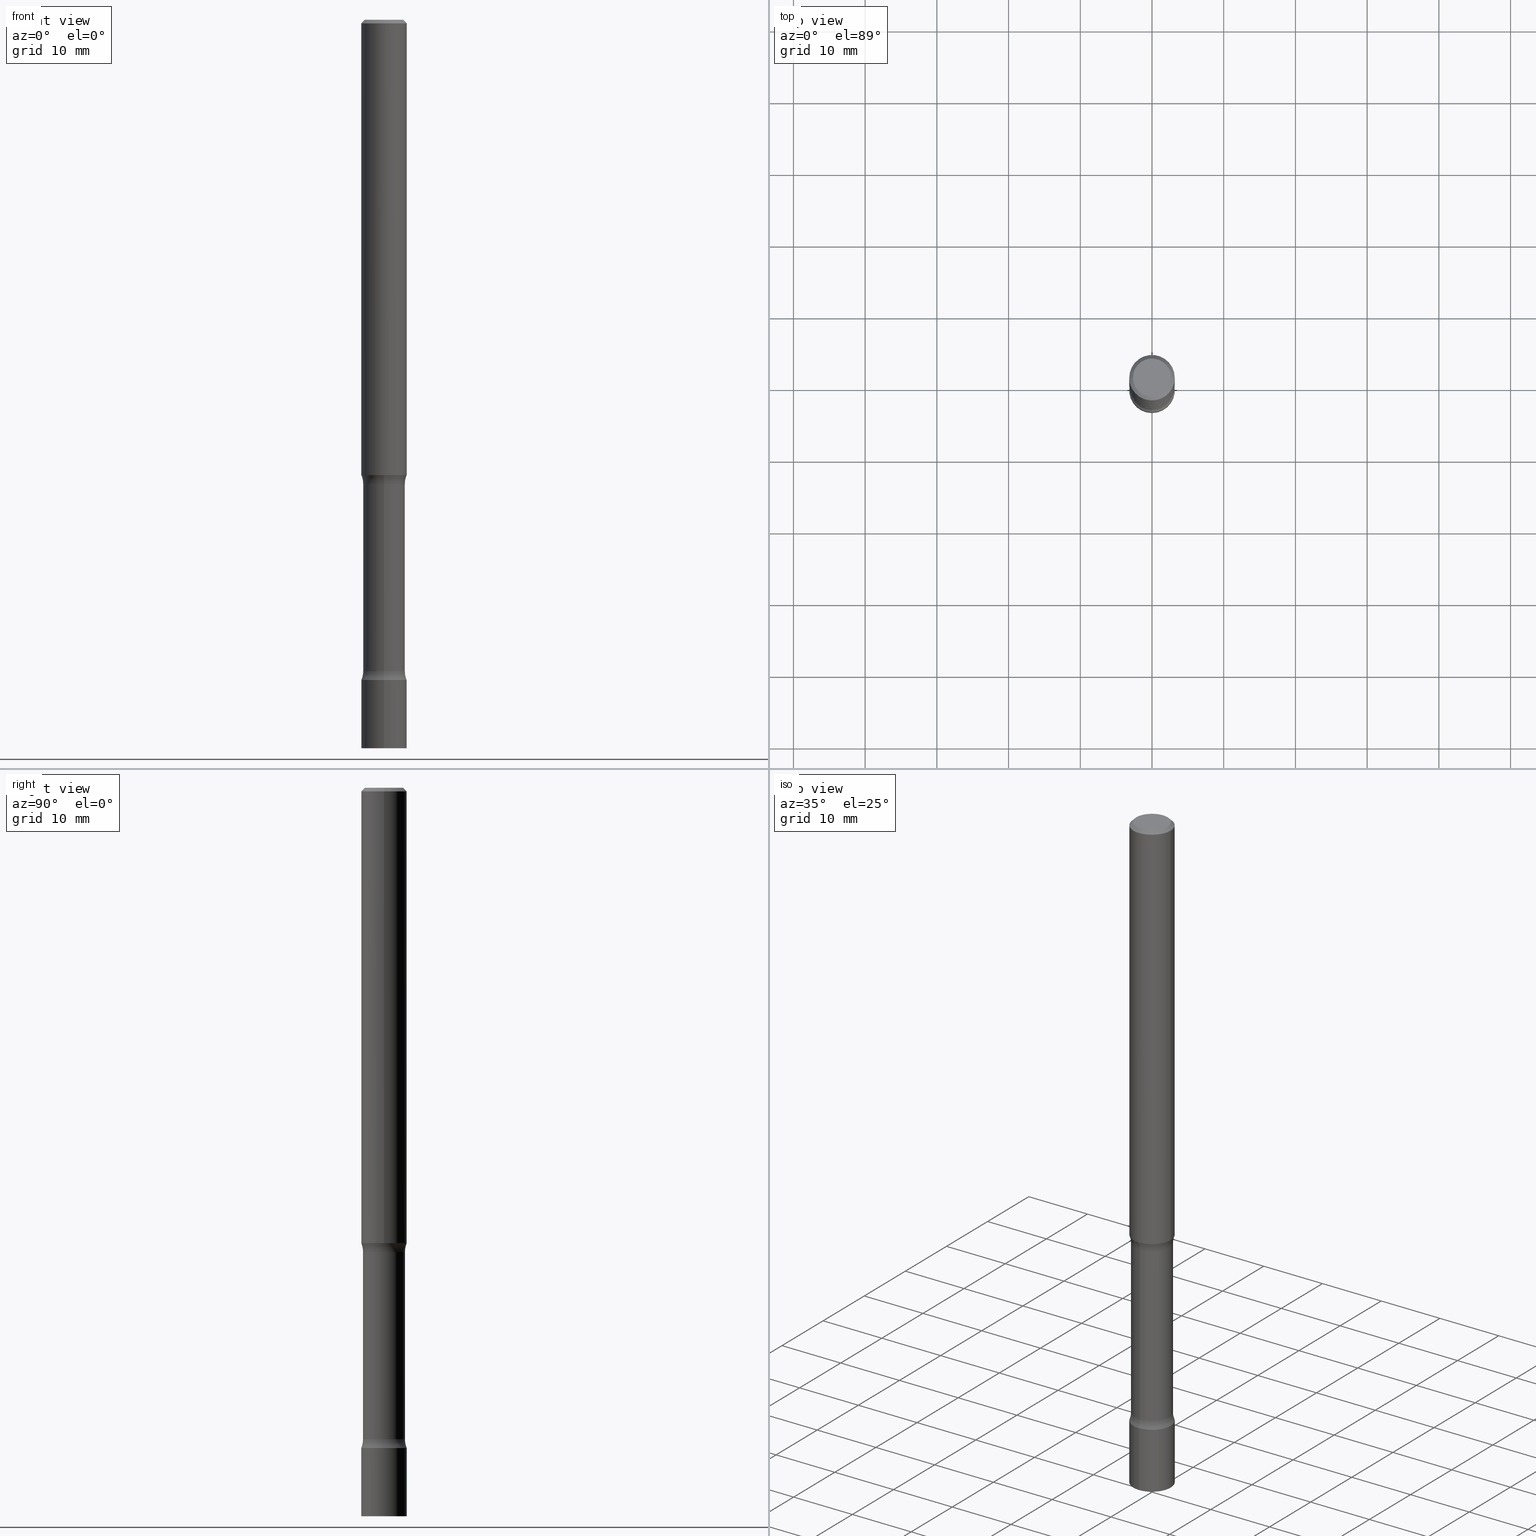
[diagram: canonical four-view strip — front | top / right | iso, engineering-drawing reading convention]
A machine part, canonical four-view strip (front | top / right | iso — engineering-drawing reading convention). The complete STEP part file that produces these views, byte-faithful:
ISO-10303-21;
HEADER;
FILE_DESCRIPTION (( 'STEP AP203' ),
    '1' );
FILE_NAME ('32728.STEP',
    '2024-03-11T13:17:38',
    ( '' ),
    ( '' ),
    'SwSTEP 2.0',
    'SolidWorks 2023',
    '' );
FILE_SCHEMA (( 'CONFIG_CONTROL_DESIGN' ));
ENDSEC;

DATA;
#1 = CIRCLE ( 'NONE', #482, 0.1250000000000000278 ) ;
#2 = CIRCLE ( 'NONE', #307, 0.1150000000000002548 ) ;
#3 = ORIENTED_EDGE ( 'NONE', *, *, #168, .F. ) ;
#4 = DIRECTION ( 'NONE',  ( 6.982962677686265922E-15, 1.000000000000000000, -4.751039988981320237E-15 ) ) ;
#5 = ORIENTED_EDGE ( 'NONE', *, *, #403, .T. ) ;
#6 = ADVANCED_FACE ( 'NONE', ( #472 ), #191, .F. ) ;
#7 = VERTEX_POINT ( 'NONE', #353 ) ;
#8 = DIRECTION ( 'NONE',  ( 2.666918422413057780E-29, -3.174352884275353825E-15, -1.000000000000000000 ) ) ;
#9 = CIRCLE ( 'NONE', #282, 0.1249999999999996947 ) ;
#10 = CIRCLE ( 'NONE', #194, 0.1249999999999999861 ) ;
#11 = ORIENTED_EDGE ( 'NONE', *, *, #17, .F. ) ;
#12 = EDGE_LOOP ( 'NONE', ( #80, #471, #486, #269 ) ) ;
#13 = DIRECTION ( 'NONE',  ( 6.982962677686265133E-15, 1.000000000000000000, -4.751039988981317081E-15 ) ) ;
#14 = FACE_OUTER_BOUND ( 'NONE', #12, .T. ) ;
#15 = LINE ( 'NONE', #367, #177 ) ;
#16 = CC_DESIGN_APPROVAL ( #237, ( #438 ) ) ;
#17 = EDGE_CURVE ( 'NONE', #7, #84, #345, .T. ) ;
#18 = LINE ( 'NONE', #362, #459 ) ;
#19 = AXIS2_PLACEMENT_3D ( 'NONE', #454, #64, #250 ) ;
#20 = CARTESIAN_POINT ( 'NONE',  ( -0.1049999999999997047, 7.681258945454870110E-16, -5.249639473182151863E-30 ) ) ;
#21 = CC_DESIGN_SECURITY_CLASSIFICATION ( #313, ( #293 ) ) ;
#22 = CARTESIAN_POINT ( 'NONE',  ( 0.000000000000000000, 0.000000000000000000, 0.000000000000000000 ) ) ;
#23 = CARTESIAN_POINT ( 'NONE',  ( 6.113672015462840371E-29, -8.728703347107863365E-15, -2.499999999999999556 ) ) ;
#24 = FACE_OUTER_BOUND ( 'NONE', #128, .T. ) ;
#25 = DIRECTION ( 'NONE',  ( 2.666918422413057780E-29, -3.174352884275353825E-15, -1.000000000000000000 ) ) ;
#26 = APPROVAL_STATUS ( 'not_yet_approved' ) ;
#27 = DIRECTION ( 'NONE',  ( 6.982962677686266711E-15, 1.000000000000000000, -3.174352884275354219E-15 ) ) ;
#28 = ORIENTED_EDGE ( 'NONE', *, *, #252, .T. ) ;
#29 = AXIS2_PLACEMENT_3D ( 'NONE', #140, #333, #133 ) ;
#30 = PERSON_AND_ORGANIZATION ( #286, #240 ) ;
#31 = DIRECTION ( 'NONE',  ( 6.982962677686265922E-15, 1.000000000000000000, -4.370956789862821938E-15 ) ) ;
#32 = DIRECTION ( 'NONE',  ( 2.666918422413057780E-29, -3.174352884275353825E-15, -1.000000000000000000 ) ) ;
#33 = COORDINATED_UNIVERSAL_TIME_OFFSET ( 5, 0, .BEHIND. ) ;
#34 = DIRECTION ( 'NONE',  ( 1.000000000000000000, -6.982962677686266711E-15, 0.000000000000000000 ) ) ;
#35 = ORIENTED_EDGE ( 'NONE', *, *, #377, .T. ) ;
#36 = CALENDAR_DATE ( 2024, 11, 3 ) ;
#37 = CARTESIAN_POINT ( 'NONE',  ( 4.890937612370273159E-31, -6.982962677686291609E-17, -0.02000000000000000042 ) ) ;
#38 = AXIS2_PLACEMENT_3D ( 'NONE', #379, #169, #290 ) ;
#39 = AXIS2_PLACEMENT_3D ( 'NONE', #220, #391, #446 ) ;
#40 = LOCAL_TIME ( 9, 17, 38.00000000000000000, #460 ) ;
#41 = VERTEX_POINT ( 'NONE', #371 ) ;
#42 = DIRECTION ( 'NONE',  ( -2.445794110482725293E-29, 3.491015484573827856E-15, 1.000000000000000000 ) ) ;
#43 = ORIENTED_EDGE ( 'NONE', *, *, #235, .F. ) ;
#44 = VERTEX_POINT ( 'NONE', #257 ) ;
#45 = AXIS2_PLACEMENT_3D ( 'NONE', #67, #296, #254 ) ;
#46 = CIRCLE ( 'NONE', #331, 0.1250000000000000000 ) ;
#47 = DIRECTION ( 'NONE',  ( -6.982962677686265922E-15, -1.000000000000000000, 4.370956789862821150E-15 ) ) ;
#48 = ORIENTED_EDGE ( 'NONE', *, *, #301, .T. ) ;
#49 = CARTESIAN_POINT ( 'NONE',  ( 8.735351864089074202E-29, -1.249942023497999275E-14, -3.576010205144336318 ) ) ;
#50 = DIRECTION ( 'NONE',  ( -6.982962677686265922E-15, -1.000000000000000000, 4.370956789862821938E-15 ) ) ;
#51 = MANIFOLD_SOLID_BREP ( 'Body-Move/Copy2[4]', #59 ) ;
#52 = DIRECTION ( 'NONE',  ( 1.000000000000000000, -6.982962677686265922E-15, 4.876176775795935793E-29 ) ) ;
#53 = CC_DESIGN_APPROVAL ( #163, ( #293 ) ) ;
#54 = PERSON_AND_ORGANIZATION_ROLE ( 'creator' ) ;
#55 = ADVANCED_FACE ( 'NONE', ( #382 ), #200, .F. ) ;
#56 = ADVANCED_FACE ( 'NONE', ( #455 ), #210, .T. ) ;
#57 = DIRECTION ( 'NONE',  ( 6.982962677686266711E-15, 1.000000000000000000, -3.174352884275353825E-15 ) ) ;
#58 = APPROVAL_DATE_TIME ( #417, #237 ) ;
#59 = CLOSED_SHELL ( 'NONE', ( #56, #238, #275, #55, #305, #318, #76, #425 ) ) ;
#60 = DIRECTION ( 'NONE',  ( -6.982962677686265922E-15, -1.000000000000000000, 0.000000000000000000 ) ) ;
#61 = DATE_AND_TIME ( #187, #91 ) ;
#62 = DIRECTION ( 'NONE',  ( -2.445794110482725293E-29, 3.491015484573827856E-15, 1.000000000000000000 ) ) ;
#63 = ADVANCED_FACE ( 'NONE', ( #24 ), #298, .T. ) ;
#64 = DIRECTION ( 'NONE',  ( -1.000000000000000000, 6.982962677686265922E-15, -4.883557194083112340E-29 ) ) ;
#65 = EDGE_CURVE ( 'NONE', #436, #186, #228, .T. ) ;
#66 = ORIENTED_EDGE ( 'NONE', *, *, #120, .T. ) ;
#67 = CARTESIAN_POINT ( 'NONE',  ( 6.113672015462840371E-29, -8.728703347107863365E-15, -2.499999999999999556 ) ) ;
#68 = AXIS2_PLACEMENT_3D ( 'NONE', #37, #263, #106 ) ;
#69 = COORDINATED_UNIVERSAL_TIME_OFFSET ( 5, 0, .BEHIND. ) ;
#70 = PLANE ( 'NONE',  #138 ) ;
#71 = ORIENTED_EDGE ( 'NONE', *, *, #255, .T. ) ;
#72 = FACE_OUTER_BOUND ( 'NONE', #221, .T. ) ;
#73 = DIRECTION ( 'NONE',  ( -2.445794110482725293E-29, 3.491015484573827856E-15, 1.000000000000000000 ) ) ;
#74 = AXIS2_PLACEMENT_3D ( 'NONE', #302, #356, #127 ) ;
#75 = CARTESIAN_POINT ( 'NONE',  ( 8.864824422421120163E-29, -1.265661985330640259E-14, -3.624999999999999556 ) ) ;
#76 = ADVANCED_FACE ( 'NONE', ( #181 ), #312, .F. ) ;
#77 = ORIENTED_EDGE ( 'NONE', *, *, #17, .T. ) ;
#78 = VERTEX_POINT ( 'NONE', #118 ) ;
#79 = CIRCLE ( 'NONE', #249, 0.1049999999999997047 ) ;
#80 = ORIENTED_EDGE ( 'NONE', *, *, #473, .F. ) ;
#81 = CARTESIAN_POINT ( 'NONE',  ( -8.728703347107832402E-16, -0.1250000000000000000, 4.363769355717284326E-16 ) ) ;
#82 = CC_DESIGN_PERSON_AND_ORGANIZATION_ASSIGNMENT ( #261, #175, ( #313 ) ) ;
#83 = ORIENTED_EDGE ( 'NONE', *, *, #374, .T. ) ;
#84 = VERTEX_POINT ( 'NONE', #152 ) ;
#85 = CARTESIAN_POINT ( 'NONE',  ( 0.1249999999999998473, -8.728703347107822541E-16, 6.095220969744912034E-30 ) ) ;
#86 = PERSON_AND_ORGANIZATION ( #286, #240 ) ;
#87 = EDGE_LOOP ( 'NONE', ( #230, #192, #271, #352 ) ) ;
#88 = EDGE_CURVE ( 'NONE', #44, #467, #475, .T. ) ;
#89 = LENGTH_MEASURE_WITH_UNIT ( LENGTH_MEASURE( 0.02539999999999999897 ), #241 );
#90 = AXIS2_PLACEMENT_3D ( 'NONE', #114, #415, #164 ) ;
#91 = LOCAL_TIME ( 9, 17, 38.00000000000000000, #69 ) ;
#92 = CARTESIAN_POINT ( 'NONE',  ( 8.030407079339822620E-16, 0.1149999999999910261, -2.548989794855663682 ) ) ;
#93 = PLANE ( 'NONE',  #435 ) ;
#94 = CARTESIAN_POINT ( 'NONE',  ( 1.675911042644791535E-15, 0.2399999999999875289, -3.576010205144337206 ) ) ;
#95 = APPROVAL_ROLE ( '' ) ;
#96 = DESIGN_CONTEXT ( 'detailed design', #123, 'design' ) ;
#97 = AXIS2_PLACEMENT_3D ( 'NONE', #102, #32, #57 ) ;
#98 = APPROVAL_PERSON_ORGANIZATION ( #487, #237, #95 ) ;
#99 = DIRECTION ( 'NONE',  ( 2.666918422413057780E-29, -3.174352884275353825E-15, -1.000000000000000000 ) ) ;
#100 = DIRECTION ( 'NONE',  ( 6.860497997771531562E-15, 1.000000000000000000, 0.000000000000000000 ) ) ;
#101 = EDGE_LOOP ( 'NONE', ( #281, #266, #11, #361 ) ) ;
#102 = CARTESIAN_POINT ( 'NONE',  ( 6.018865614068992271E-29, -9.207083200927395066E-15, -2.548989794855663238 ) ) ;
#103 = DIRECTION ( 'NONE',  ( -6.982962677686265922E-15, -1.000000000000000000, 4.370956789862821938E-15 ) ) ;
#104 = APPROVAL_DATE_TIME ( #507, #163 ) ;
#105 = AXIS2_PLACEMENT_3D ( 'NONE', #335, #25, #209 ) ;
#106 = DIRECTION ( 'NONE',  ( -1.000000000000000000, 6.982962677686266711E-15, 0.000000000000000000 ) ) ;
#107 = AXIS2_PLACEMENT_3D ( 'NONE', #470, #111, #4 ) ;
#108 = CONICAL_SURFACE ( 'NONE', #402, 0.1249999999999996947, 0.7853981633974480570 ) ;
#109 = APPROVAL_PERSON_ORGANIZATION ( #30, #148, #502 ) ;
#110 = APPROVAL_DATE_TIME ( #495, #148 ) ;
#111 = DIRECTION ( 'NONE',  ( 2.666918422413057780E-29, -3.174352884275353825E-15, -1.000000000000000000 ) ) ;
#112 = ORIENTED_EDGE ( 'NONE', *, *, #357, .F. ) ;
#113 = PLANE ( 'NONE',  #151 ) ;
#114 = CARTESIAN_POINT ( 'NONE',  ( 0.000000000000000000, 0.000000000000000000, 0.000000000000000000 ) ) ;
#115 = EDGE_LOOP ( 'NONE', ( #358, #83, #35, #504 ) ) ;
#116 = ADVANCED_FACE ( 'NONE', ( #304 ), #146, .T. ) ;
#117 = CIRCLE ( 'NONE', #338, 0.1249999999999999306 ) ;
#118 = CARTESIAN_POINT ( 'NONE',  ( -0.1250000000000000278, -3.511088067242232183E-15, -2.499999999999999556 ) ) ;
#119 = ORIENTED_EDGE ( 'NONE', *, *, #433, .F. ) ;
#120 = EDGE_CURVE ( 'NONE', #78, #484, #211, .T. ) ;
#121 = ORIENTED_EDGE ( 'NONE', *, *, #326, .F. ) ;
#122 = ORIENTED_EDGE ( 'NONE', *, *, #348, .T. ) ;
#123 = APPLICATION_CONTEXT ( 'configuration controlled 3d designs of mechanical parts and assemblies' ) ;
#124 = CARTESIAN_POINT ( 'NONE',  ( 8.728703347108439825E-16, 0.1249999999999912015, -2.500000000000000000 ) ) ;
#125 = ORIENTED_EDGE ( 'NONE', *, *, #154, .F. ) ;
#126 = CIRCLE ( 'NONE', #414, 0.1249999999999996947 ) ;
#127 = DIRECTION ( 'NONE',  ( 6.982962677686265922E-15, 1.000000000000000000, -4.370956789862810105E-15 ) ) ;
#128 = EDGE_LOOP ( 'NONE', ( #71, #66, #233, #121 ) ) ;
#129 = ORIENTED_EDGE ( 'NONE', *, *, #329, .T. ) ;
#130 = PRODUCT_RELATED_PRODUCT_CATEGORY ( 'detail', '', ( #134 ) ) ;
#131 = APPLICATION_PROTOCOL_DEFINITION ( 'international standard', 'config_control_design', 1994, #284 ) ;
#132 = VECTOR ( 'NONE', #142, 39.37007874015748143 ) ;
#133 = DIRECTION ( 'NONE',  ( 1.000000000000000000, -6.982962677686265922E-15, 4.876176775795935793E-29 ) ) ;
#134 = PRODUCT ( '32728', '32728', '', ( #453 ) ) ;
#135 = EDGE_CURVE ( 'NONE', #273, #389, #214, .T. ) ;
#136 = CARTESIAN_POINT ( 'NONE',  ( 8.881784197001251337E-16, 0.1250000000000000000, -4.363769355717284326E-16 ) ) ;
#137 = CLOSED_SHELL ( 'NONE', ( #283, #295, #6, #395 ) ) ;
#138 = AXIS2_PLACEMENT_3D ( 'NONE', #217, #219, #319 ) ;
#139 = CARTESIAN_POINT ( 'NONE',  ( 0.000000000000000000, 0.000000000000000000, 0.000000000000000000 ) ) ;
#140 = CARTESIAN_POINT ( 'NONE',  ( 6.113672015462840371E-29, -8.728703347107863365E-15, -2.499999999999999556 ) ) ;
#141 = APPROVAL_ROLE ( '' ) ;
#142 = DIRECTION ( 'NONE',  ( -2.445794110482725293E-29, 3.491015484573827856E-15, 1.000000000000000000 ) ) ;
#143 = AXIS2_PLACEMENT_3D ( 'NONE', #174, #243, #494 ) ;
#144 = FACE_OUTER_BOUND ( 'NONE', #303, .T. ) ;
#145 = AXIS2_PLACEMENT_3D ( 'NONE', #332, #327, #365 ) ;
#146 = CYLINDRICAL_SURFACE ( 'NONE', #90, 0.1249999999999998473 ) ;
#147 = DIRECTION ( 'NONE',  ( 6.982962677686265922E-15, 1.000000000000000000, -4.751039988981323392E-15 ) ) ;
#148 = APPROVAL ( #336, 'UNSPECIFIED' ) ;
#149 = EDGE_LOOP ( 'NONE', ( #77, #267 ) ) ;
#150 = AXIS2_PLACEMENT_3D ( 'NONE', #178, #456, #31 ) ;
#151 = AXIS2_PLACEMENT_3D ( 'NONE', #478, #341, #157 ) ;
#152 = CARTESIAN_POINT ( 'NONE',  ( 8.881784197002228539E-16, 0.1249999999999873157, -3.625000000000000444 ) ) ;
#153 = ORIENTED_EDGE ( 'NONE', *, *, #473, .T. ) ;
#154 = EDGE_CURVE ( 'NONE', #78, #359, #176, .T. ) ;
#155 = CARTESIAN_POINT ( 'NONE',  ( 8.866003650499878838E-29, -1.265493113158012519E-14, -3.624999999999999556 ) ) ;
#156 = ORIENTED_EDGE ( 'NONE', *, *, #88, .F. ) ;
#157 = DIRECTION ( 'NONE',  ( -6.982962677686265922E-15, -1.000000000000000000, 3.174352884275353825E-15 ) ) ;
#158 = ORIENTED_EDGE ( 'NONE', *, *, #314, .F. ) ;
#159 = CLOSED_SHELL ( 'NONE', ( #63, #394, #447, #429, #297, #116 ) ) ;
#160 = LOCAL_TIME ( 9, 17, 38.00000000000000000, #206 ) ;
#161 = CARTESIAN_POINT ( 'NONE',  ( 8.728703347108716912E-16, 0.1249999999999873157, -3.624999999999999556 ) ) ;
#162 =( NAMED_UNIT ( * ) SI_UNIT ( $, .STERADIAN. ) SOLID_ANGLE_UNIT ( ) );
#163 = APPROVAL ( #26, 'UNSPECIFIED' ) ;
#164 = DIRECTION ( 'NONE',  ( 1.000000000000000000, -6.982962677686266711E-15, 4.876176775795935793E-29 ) ) ;
#165 = DATE_AND_TIME ( #197, #160 ) ;
#166 = CALENDAR_DATE ( 2024, 11, 3 ) ;
#167 = AXIS2_PLACEMENT_3D ( 'NONE', #49, #196, #147 ) ;
#168 = EDGE_CURVE ( 'NONE', #467, #84, #287, .T. ) ;
#169 = DIRECTION ( 'NONE',  ( 2.666918422413057780E-29, -3.174352884275353825E-15, -1.000000000000000000 ) ) ;
#170 = CC_DESIGN_PERSON_AND_ORGANIZATION_ASSIGNMENT ( #204, #54, ( #438 ) ) ;
#171 = DIRECTION ( 'NONE',  ( 2.666918422413057780E-29, -3.174352884275353825E-15, -1.000000000000000000 ) ) ;
#172 = DIRECTION ( 'NONE',  ( -2.445468806185136597E-29, 3.491481338843145583E-15, 1.000000000000000000 ) ) ;
#173 = PERSON_AND_ORGANIZATION ( #286, #240 ) ;
#174 = CARTESIAN_POINT ( 'NONE',  ( 6.113672015462840371E-29, -8.728703347107863365E-15, -2.499999999999999556 ) ) ;
#175 = PERSON_AND_ORGANIZATION_ROLE ( 'classification_officer' ) ;
#176 = CIRCLE ( 'NONE', #45, 0.1250000000000000000 ) ;
#177 = VECTOR ( 'NONE', #288, 39.37007874015748143 ) ;
#178 = CARTESIAN_POINT ( 'NONE',  ( 8.866003650499878838E-29, -1.265493113158012519E-14, -3.624999999999999556 ) ) ;
#179 = DIRECTION ( 'NONE',  ( -2.445794110482725293E-29, 3.491015484573827856E-15, 1.000000000000000000 ) ) ;
#180 = ORIENTED_EDGE ( 'NONE', *, *, #366, .T. ) ;
#181 = FACE_OUTER_BOUND ( 'NONE', #315, .T. ) ;
#182 = CARTESIAN_POINT ( 'NONE',  ( -8.232597597324957230E-16, -0.1150000000000126060, -3.576010205144335874 ) ) ;
#183 = EDGE_LOOP ( 'NONE', ( #428, #153 ) ) ;
#184 = DATE_TIME_ROLE ( 'classification_date' ) ;
#185 = CARTESIAN_POINT ( 'NONE',  ( 9.783176441930901173E-29, -1.396406193829530984E-14, -4.000000000000000000 ) ) ;
#186 = VERTEX_POINT ( 'NONE', #422 ) ;
#187 = CALENDAR_DATE ( 2024, 11, 3 ) ;
#188 = AXIS2_PLACEMENT_3D ( 'NONE', #75, #350, #268 ) ;
#189 = DIRECTION ( 'NONE',  ( 6.982962677686265922E-15, 1.000000000000000000, -3.174352884275353825E-15 ) ) ;
#190 = AXIS2_PLACEMENT_3D ( 'NONE', #474, #320, #481 ) ;
#191 = PLANE ( 'NONE',  #188 ) ;
#192 = ORIENTED_EDGE ( 'NONE', *, *, #433, .T. ) ;
#193 = VECTOR ( 'NONE', #461, 39.37007874015748143 ) ;
#194 = AXIS2_PLACEMENT_3D ( 'NONE', #155, #73, #50 ) ;
#195 = DIRECTION ( 'NONE',  ( 2.666918422413057780E-29, -3.174352884275353825E-15, -1.000000000000000000 ) ) ;
#196 = DIRECTION ( 'NONE',  ( 2.666918422413057780E-29, -3.174352884275353825E-15, -1.000000000000000000 ) ) ;
#197 = CALENDAR_DATE ( 2024, 11, 3 ) ;
#198 = VERTEX_POINT ( 'NONE', #182 ) ;
#199 = EDGE_CURVE ( 'NONE', #484, #41, #9, .T. ) ;
#200 = TOROIDAL_SURFACE ( 'NONE', #38, 0.2400000000000002409, 0.1250000000000000278 ) ;
#201 = APPROVAL_PERSON_ORGANIZATION ( #380, #163, #141 ) ;
#202 = CC_DESIGN_PERSON_AND_ORGANIZATION_ASSIGNMENT ( #387, #340, ( #293 ) ) ;
#203 = CC_DESIGN_APPROVAL ( #148, ( #313 ) ) ;
#204 = PERSON_AND_ORGANIZATION ( #286, #240 ) ;
#205 = PLANE ( 'NONE',  #29 ) ;
#206 = COORDINATED_UNIVERSAL_TIME_OFFSET ( 5, 0, .BEHIND. ) ;
#207 = DIRECTION ( 'NONE',  ( -2.445794110482725293E-29, 3.491015484573827856E-15, 1.000000000000000000 ) ) ;
#208 = DIRECTION ( 'NONE',  ( 2.666918422413057780E-29, -3.174352884275353825E-15, -1.000000000000000000 ) ) ;
#209 = DIRECTION ( 'NONE',  ( 6.982962677686265922E-15, 1.000000000000000000, -4.370956789862810105E-15 ) ) ;
#210 = CYLINDRICAL_SURFACE ( 'NONE', #413, 0.1150000000000001715 ) ;
#211 = LINE ( 'NONE', #328, #442 ) ;
#212 = CARTESIAN_POINT ( 'NONE',  ( 4.890937612370273159E-31, -6.982962677686291609E-17, -0.02000000000000000042 ) ) ;
#213 = EDGE_CURVE ( 'NONE', #389, #41, #385, .T. ) ;
#214 = CIRCLE ( 'NONE', #258, 0.1049999999999997047 ) ;
#215 = AXIS2_PLACEMENT_3D ( 'NONE', #23, #171, #189 ) ;
#216 = DIRECTION ( 'NONE',  ( -2.445468806185136597E-29, 3.491481338843145583E-15, 1.000000000000000000 ) ) ;
#217 = CARTESIAN_POINT ( 'NONE',  ( 9.781875224740546387E-29, -1.396592535537258233E-14, -4.000000000000000000 ) ) ;
#218 = ORIENTED_EDGE ( 'NONE', *, *, #377, .F. ) ;
#219 = DIRECTION ( 'NONE',  ( 2.445794110482725013E-29, -3.491015484573827856E-15, -1.000000000000000000 ) ) ;
#220 = CARTESIAN_POINT ( 'NONE',  ( 8.735351864089074202E-29, -1.249942023497999275E-14, -3.576010205144336318 ) ) ;
#221 = EDGE_LOOP ( 'NONE', ( #156, #444 ) ) ;
#222 = DIRECTION ( 'NONE',  ( 6.982962677686266711E-15, 1.000000000000000000, -3.174352884275354219E-15 ) ) ;
#223 = ORIENTED_EDGE ( 'NONE', *, *, #351, .T. ) ;
#224 = EDGE_CURVE ( 'NONE', #317, #349, #330, .T. ) ;
#225 = CARTESIAN_POINT ( 'NONE',  ( 8.745021407280186183E-29, -1.248557289877410003E-14, -3.576010205144336318 ) ) ;
#226 = VERTEX_POINT ( 'NONE', #92 ) ;
#227 = ORIENTED_EDGE ( 'NONE', *, *, #135, .F. ) ;
#228 = CIRCLE ( 'NONE', #150, 0.1249999999999999861 ) ;
#229 = VECTOR ( 'NONE', #262, 39.37007874015748143 ) ;
#230 = ORIENTED_EDGE ( 'NONE', *, *, #314, .T. ) ;
#231 = CARTESIAN_POINT ( 'NONE',  ( 5.996372211695994382E-29, -9.239295033370484915E-15, -2.548989794855663238 ) ) ;
#232 = ORIENTED_EDGE ( 'NONE', *, *, #199, .F. ) ;
#233 = ORIENTED_EDGE ( 'NONE', *, *, #407, .F. ) ;
#235 = EDGE_CURVE ( 'NONE', #260, #317, #1, .T. ) ;
#234 = CARTESIAN_POINT ( 'NONE',  ( 5.996372211695994382E-29, -9.239295033370484915E-15, -2.548989794855663238 ) ) ;
#236 = EDGE_LOOP ( 'NONE', ( #3, #323, #122, #112 ) ) ;
#237 = APPROVAL ( #280, 'UNSPECIFIED' ) ;
#238 = ADVANCED_FACE ( 'NONE', ( #496 ), #247, .F. ) ;
#239 = DIRECTION ( 'NONE',  ( 2.438088387897960049E-29, -3.491481338843145188E-15, -1.000000000000000000 ) ) ;
#240 = ORGANIZATION ( 'UNSPECIFIED', 'UNSPECIFIED', '' ) ;
#241 =( LENGTH_UNIT ( ) NAMED_UNIT ( * ) SI_UNIT ( $, .METRE. ) );
#242 = CC_DESIGN_DATE_AND_TIME_ASSIGNMENT ( #61, #184, ( #313 ) ) ;
#243 = DIRECTION ( 'NONE',  ( -2.445468806185136597E-29, 3.491481338843145583E-15, 1.000000000000000000 ) ) ;
#244 = CARTESIAN_POINT ( 'NONE',  ( -0.1249999999999996947, 8.030407079339181671E-16, -0.02000000000000000042 ) ) ;
#245 = UNCERTAINTY_MEASURE_WITH_UNIT (LENGTH_MEASURE( 1.000000000000000082E-05 ), #485, 'distance_accuracy_value', 'NONE');
#246 = DIRECTION ( 'NONE',  ( -1.000000000000000000, 6.982962677686265922E-15, -4.883557194083112340E-29 ) ) ;
#247 = TOROIDAL_SURFACE ( 'NONE', #401, 0.2400000000000000466, 0.1249999999999999306 ) ;
#248 = COORDINATED_UNIVERSAL_TIME_OFFSET ( 5, 0, .BEHIND. ) ;
#249 = AXIS2_PLACEMENT_3D ( 'NONE', #22, #334, #52 ) ;
#250 = DIRECTION ( 'NONE',  ( -6.982962677686265922E-15, -1.000000000000000000, 0.000000000000000000 ) ) ;
#251 = CARTESIAN_POINT ( 'NONE',  ( 9.866098058904775575E-29, -1.384531346318338381E-14, -4.000000000000000000 ) ) ;
#252 = EDGE_CURVE ( 'NONE', #226, #349, #468, .T. ) ;
#253 = SHAPE_DEFINITION_REPRESENTATION ( #458, #278 ) ;
#254 = DIRECTION ( 'NONE',  ( 1.000000000000000000, -6.982962677686270655E-15, 0.000000000000000000 ) ) ;
#255 = EDGE_CURVE ( 'NONE', #359, #78, #306, .T. ) ;
#256 = FACE_OUTER_BOUND ( 'NONE', #445, .T. ) ;
#257 = CARTESIAN_POINT ( 'NONE',  ( -8.728703347106854215E-16, -0.1250000000000139611, -3.999999999999999556 ) ) ;
#258 = AXIS2_PLACEMENT_3D ( 'NONE', #464, #216, #457 ) ;
#259 = FACE_OUTER_BOUND ( 'NONE', #311, .T. ) ;
#260 = VERTEX_POINT ( 'NONE', #291 ) ;
#261 = PERSON_AND_ORGANIZATION ( #286, #240 ) ;
#262 = DIRECTION ( 'NONE',  ( -2.445468806185136877E-29, 3.491481338843145188E-15, 1.000000000000000000 ) ) ;
#263 = DIRECTION ( 'NONE',  ( 2.445468806185136597E-29, -3.491481338843145583E-15, -1.000000000000000000 ) ) ;
#264 = CARTESIAN_POINT ( 'NONE',  ( 9.783176441930901173E-29, -1.396406193829530984E-14, -4.000000000000000000 ) ) ;
#265 = LOCAL_TIME ( 9, 17, 38.00000000000000000, #33 ) ;
#266 = ORIENTED_EDGE ( 'NONE', *, *, #168, .T. ) ;
#267 = ORIENTED_EDGE ( 'NONE', *, *, #357, .T. ) ;
#268 = DIRECTION ( 'NONE',  ( 6.982962677686265922E-15, 1.000000000000000000, -3.491015484573827856E-15 ) ) ;
#269 = ORIENTED_EDGE ( 'NONE', *, *, #431, .F. ) ;
#270 = ORIENTED_EDGE ( 'NONE', *, *, #213, .F. ) ;
#271 = ORIENTED_EDGE ( 'NONE', *, *, #366, .F. ) ;
#272 = LINE ( 'NONE', #85, #229 ) ;
#273 = VERTEX_POINT ( 'NONE', #20 ) ;
#274 = DIRECTION ( 'NONE',  ( 1.000000000000000000, -6.860497997771530774E-15, 4.844682583092192564E-29 ) ) ;
#275 = ADVANCED_FACE ( 'NONE', ( #256 ), #321, .F. ) ;
#276 = EDGE_LOOP ( 'NONE', ( #399, #396, #411, #232 ) ) ;
#277 = ORIENTED_EDGE ( 'NONE', *, *, #364, .F. ) ;
#278 = ADVANCED_BREP_SHAPE_REPRESENTATION ( '32728', ( #390, #392, #51, #145 ), #372 ) ;
#279 = DIRECTION ( 'NONE',  ( -2.445468806185136877E-29, 3.491481338843145188E-15, 1.000000000000000000 ) ) ;
#280 = APPROVAL_STATUS ( 'not_yet_approved' ) ;
#281 = ORIENTED_EDGE ( 'NONE', *, *, #88, .T. ) ;
#282 = AXIS2_PLACEMENT_3D ( 'NONE', #212, #426, #420 ) ;
#283 = ADVANCED_FACE ( 'NONE', ( #418 ), #337, .T. ) ;
#284 = APPLICATION_CONTEXT ( 'configuration controlled 3d designs of mechanical parts and assemblies' ) ;
#285 =( NAMED_UNIT ( * ) PLANE_ANGLE_UNIT ( ) SI_UNIT ( $, .RADIAN. ) );
#286 = PERSON ( 'UNSPECIFIED', 'UNSPECIFIED', 'UNSPECIFIED', ('UNSPECIFIED'), ('UNSPECIFIED'), ('UNSPECIFIED') ) ;
#287 = LINE ( 'NONE', #136, #449 ) ;
#288 = DIRECTION ( 'NONE',  ( 2.666918422413057780E-29, -3.174352884275353825E-15, -1.000000000000000000 ) ) ;
#289 = CARTESIAN_POINT ( 'NONE',  ( -1.646519519465108789E-15, -0.2400000000000094558, -2.548989794855662794 ) ) ;
#290 = DIRECTION ( 'NONE',  ( 6.982962677686266711E-15, 1.000000000000000000, -3.174352884275353825E-15 ) ) ;
#291 = CARTESIAN_POINT ( 'NONE',  ( -8.232597597325262914E-16, -0.1150000000000094835, -2.548989794855662794 ) ) ;
#292 = AXIS2_PLACEMENT_3D ( 'NONE', #462, #172, #294 ) ;
#293 = PRODUCT_DEFINITION_FORMATION_WITH_SPECIFIED_SOURCE ( 'ANY', '', #134, .NOT_KNOWN. ) ;
#294 = DIRECTION ( 'NONE',  ( 1.000000000000000000, -6.982962677686266711E-15, 4.876176775795935793E-29 ) ) ;
#295 = ADVANCED_FACE ( 'NONE', ( #492 ), #452, .T. ) ;
#296 = DIRECTION ( 'NONE',  ( -2.445468806185136597E-29, 3.491481338843145583E-15, 1.000000000000000000 ) ) ;
#297 = ADVANCED_FACE ( 'NONE', ( #369 ), #205, .F. ) ;
#298 = CYLINDRICAL_SURFACE ( 'NONE', #292, 0.1249999999999998473 ) ;
#299 = ORIENTED_EDGE ( 'NONE', *, *, #224, .T. ) ;
#300 = FACE_OUTER_BOUND ( 'NONE', #397, .T. ) ;
#301 = EDGE_CURVE ( 'NONE', #436, #309, #483, .T. ) ;
#302 = CARTESIAN_POINT ( 'NONE',  ( 5.865720425285187504E-29, -9.083784136770352480E-15, -2.499999999999999556 ) ) ;
#303 = EDGE_LOOP ( 'NONE', ( #119, #223, #129, #218 ) ) ;
#304 = FACE_OUTER_BOUND ( 'NONE', #276, .T. ) ;
#305 = ADVANCED_FACE ( 'NONE', ( #300 ), #375, .F. ) ;
#306 = CIRCLE ( 'NONE', #143, 0.1250000000000000000 ) ;
#307 = AXIS2_PLACEMENT_3D ( 'NONE', #231, #310, #406 ) ;
#308 = CYLINDRICAL_SURFACE ( 'NONE', #107, 0.1150000000000001715 ) ;
#309 = VERTEX_POINT ( 'NONE', #410 ) ;
#310 = DIRECTION ( 'NONE',  ( 2.666918422413057780E-29, -3.174352884275353825E-15, -1.000000000000000000 ) ) ;
#311 = EDGE_LOOP ( 'NONE', ( #437, #5 ) ) ;
#312 = TOROIDAL_SURFACE ( 'NONE', #434, 0.2400000000000000466, 0.1249999999999999306 ) ;
#313 = SECURITY_CLASSIFICATION ( '', '', #343 ) ;
#314 = EDGE_CURVE ( 'NONE', #226, #260, #322, .T. ) ;
#315 = EDGE_LOOP ( 'NONE', ( #342, #480, #48, #180 ) ) ;
#316 = DIRECTION ( 'NONE',  ( -2.445794110482725293E-29, 3.491015484573827856E-15, 1.000000000000000000 ) ) ;
#317 = VERTEX_POINT ( 'NONE', #344 ) ;
#318 = ADVANCED_FACE ( 'NONE', ( #259 ), #113, .F. ) ;
#319 = DIRECTION ( 'NONE',  ( 6.982962677686265922E-15, 1.000000000000000000, -3.491015484573827856E-15 ) ) ;
#320 = DIRECTION ( 'NONE',  ( 2.666918422413057780E-29, -3.174352884275353825E-15, -1.000000000000000000 ) ) ;
#321 = TOROIDAL_SURFACE ( 'NONE', #97, 0.2400000000000002409, 0.1250000000000000278 ) ;
#322 = CIRCLE ( 'NONE', #384, 0.1150000000000002548 ) ;
#323 = ORIENTED_EDGE ( 'NONE', *, *, #416, .T. ) ;
#324 = CARTESIAN_POINT ( 'NONE',  ( 4.890937612370273159E-31, -6.982962677686291609E-17, -0.02000000000000000042 ) ) ;
#325 = FACE_OUTER_BOUND ( 'NONE', #477, .T. ) ;
#326 = EDGE_CURVE ( 'NONE', #359, #41, #272, .T. ) ;
#327 = DIRECTION ( 'NONE',  ( 0.000000000000000000, 0.000000000000000000, 1.000000000000000000 ) ) ;
#328 = CARTESIAN_POINT ( 'NONE',  ( -0.1249999999999998473, 8.881784197001241477E-16, -6.148668862818624520E-30 ) ) ;
#329 = EDGE_CURVE ( 'NONE', #226, #309, #432, .T. ) ;
#330 = CIRCLE ( 'NONE', #105, 0.1250000000000003053 ) ;
#331 = AXIS2_PLACEMENT_3D ( 'NONE', #185, #508, #47 ) ;
#332 = CARTESIAN_POINT ( 'NONE',  ( 0.000000000000000000, 0.000000000000000000, 0.000000000000000000 ) ) ;
#333 = DIRECTION ( 'NONE',  ( -2.438088387897960049E-29, 3.491481338843145188E-15, 1.000000000000000000 ) ) ;
#334 = DIRECTION ( 'NONE',  ( -2.445468806185136597E-29, 3.491481338843145583E-15, 1.000000000000000000 ) ) ;
#335 = CARTESIAN_POINT ( 'NONE',  ( 5.865720425285187504E-29, -9.083784136770352480E-15, -2.499999999999999556 ) ) ;
#336 = APPROVAL_STATUS ( 'not_yet_approved' ) ;
#337 = CYLINDRICAL_SURFACE ( 'NONE', #490, 0.1250000000000000000 ) ;
#338 = AXIS2_PLACEMENT_3D ( 'NONE', #360, #274, #430 ) ;
#339 = DIRECTION ( 'NONE',  ( -6.982962677686265922E-15, -1.000000000000000000, 3.491015484573827461E-15 ) ) ;
#340 = PERSON_AND_ORGANIZATION_ROLE ( 'creator' ) ;
#341 = DIRECTION ( 'NONE',  ( -2.666918422413057780E-29, 3.174352884275353825E-15, 1.000000000000000000 ) ) ;
#342 = ORIENTED_EDGE ( 'NONE', *, *, #374, .F. ) ;
#343 = SECURITY_CLASSIFICATION_LEVEL ( 'unclassified' ) ;
#344 = CARTESIAN_POINT ( 'NONE',  ( -8.575622497213844501E-16, -0.1250000000000093536, -2.499999999999999112 ) ) ;
#345 = CIRCLE ( 'NONE', #383, 0.1249999999999999861 ) ;
#346 = CIRCLE ( 'NONE', #190, 0.1249999999999999861 ) ;
#347 = LINE ( 'NONE', #81, #132 ) ;
#348 = EDGE_CURVE ( 'NONE', #44, #7, #347, .T. ) ;
#349 = VERTEX_POINT ( 'NONE', #124 ) ;
#350 = DIRECTION ( 'NONE',  ( 2.445794110482725013E-29, -3.491015484573827856E-15, -1.000000000000000000 ) ) ;
#351 = EDGE_CURVE ( 'NONE', #260, #226, #2, .T. ) ;
#352 = ORIENTED_EDGE ( 'NONE', *, *, #329, .F. ) ;
#353 = CARTESIAN_POINT ( 'NONE',  ( -8.728703347106943948E-16, -0.1250000000000126288, -3.624999999999999112 ) ) ;
#354 = AXIS2_PLACEMENT_3D ( 'NONE', #94, #246, #60 ) ;
#355 = ORIENTED_EDGE ( 'NONE', *, *, #255, .F. ) ;
#356 = DIRECTION ( 'NONE',  ( 2.666918422413057780E-29, -3.174352884275353825E-15, -1.000000000000000000 ) ) ;
#357 = EDGE_CURVE ( 'NONE', #84, #7, #10, .T. ) ;
#358 = ORIENTED_EDGE ( 'NONE', *, *, #403, .F. ) ;
#359 = VERTEX_POINT ( 'NONE', #505 ) ;
#360 = CARTESIAN_POINT ( 'NONE',  ( -1.646519519465080193E-15, -0.2400000000000125366, -3.576010205144335874 ) ) ;
#361 = ORIENTED_EDGE ( 'NONE', *, *, #348, .F. ) ;
#362 = CARTESIAN_POINT ( 'NONE',  ( -0.1249999999999996947, 8.030407079339181671E-16, -0.02000000000000000042 ) ) ;
#363 = CONICAL_SURFACE ( 'NONE', #68, 0.1249999999999996947, 0.7853981633974480570 ) ;
#364 = EDGE_CURVE ( 'NONE', #349, #317, #469, .T. ) ;
#365 = DIRECTION ( 'NONE',  ( 1.000000000000000000, 0.000000000000000000, 0.000000000000000000 ) ) ;
#366 = EDGE_CURVE ( 'NONE', #309, #198, #497, .T. ) ;
#367 = CARTESIAN_POINT ( 'NONE',  ( -7.889572697436285910E-16, -0.1150000000000140216, -3.999999999999999556 ) ) ;
#368 = CARTESIAN_POINT ( 'NONE',  ( 8.881784197002183179E-16, 0.1249999999999860251, -4.000000000000000888 ) ) ;
#369 = FACE_OUTER_BOUND ( 'NONE', #408, .T. ) ;
#370 = AXIS2_PLACEMENT_3D ( 'NONE', #264, #42, #386 ) ;
#371 = CARTESIAN_POINT ( 'NONE',  ( 0.1249999999999996947, -9.273918764983021797E-16, -0.02000000000000000042 ) ) ;
#372 =( GEOMETRIC_REPRESENTATION_CONTEXT ( 3 ) GLOBAL_UNCERTAINTY_ASSIGNED_CONTEXT ( ( #245 ) ) GLOBAL_UNIT_ASSIGNED_CONTEXT ( ( #485, #285, #162 ) ) REPRESENTATION_CONTEXT ( 'NONE', 'WORKASPACE' ) );
#373 = APPLICATION_PROTOCOL_DEFINITION ( 'international standard', 'config_control_design', 1994, #123 ) ;
#374 = EDGE_CURVE ( 'NONE', #186, #198, #117, .T. ) ;
#375 = PLANE ( 'NONE',  #215 ) ;
#376 = DIRECTION ( 'NONE',  ( 6.982962677686265922E-15, 1.000000000000000000, -4.751039988981320237E-15 ) ) ;
#377 = EDGE_CURVE ( 'NONE', #198, #309, #443, .T. ) ;
#378 = DIRECTION ( 'NONE',  ( 1.000000000000000000, -6.860497997771530774E-15, 4.844682583092192564E-29 ) ) ;
#379 = CARTESIAN_POINT ( 'NONE',  ( 6.018865614068992271E-29, -9.207083200927395066E-15, -2.548989794855663238 ) ) ;
#380 = PERSON_AND_ORGANIZATION ( #286, #240 ) ;
#381 = CARTESIAN_POINT ( 'NONE',  ( 0.000000000000000000, 0.000000000000000000, 0.000000000000000000 ) ) ;
#382 = FACE_OUTER_BOUND ( 'NONE', #398, .T. ) ;
#383 = AXIS2_PLACEMENT_3D ( 'NONE', #439, #316, #103 ) ;
#384 = AXIS2_PLACEMENT_3D ( 'NONE', #234, #195, #13 ) ;
#385 = LINE ( 'NONE', #489, #193 ) ;
#386 = DIRECTION ( 'NONE',  ( -6.982962677686265922E-15, -1.000000000000000000, 4.370956789862821150E-15 ) ) ;
#387 = PERSON_AND_ORGANIZATION ( #286, #240 ) ;
#388 = CARTESIAN_POINT ( 'NONE',  ( 4.890937612370273159E-31, -6.982962677686291609E-17, -0.02000000000000000042 ) ) ;
#389 = VERTEX_POINT ( 'NONE', #466 ) ;
#390 = MANIFOLD_SOLID_BREP ( 'Body-Move/Copy2[1]', #137 ) ;
#391 = DIRECTION ( 'NONE',  ( 2.666918422413057780E-29, -3.174352884275353825E-15, -1.000000000000000000 ) ) ;
#392 = MANIFOLD_SOLID_BREP ( 'Body-Move/Copy2[2]', #159 ) ;
#393 = LOCAL_TIME ( 9, 17, 38.00000000000000000, #248 ) ;
#394 = ADVANCED_FACE ( 'NONE', ( #14 ), #363, .T. ) ;
#395 = ADVANCED_FACE ( 'NONE', ( #72 ), #70, .T. ) ;
#396 = ORIENTED_EDGE ( 'NONE', *, *, #154, .T. ) ;
#397 = EDGE_LOOP ( 'NONE', ( #277, #440 ) ) ;
#398 = EDGE_LOOP ( 'NONE', ( #43, #158, #28, #506 ) ) ;
#399 = ORIENTED_EDGE ( 'NONE', *, *, #120, .F. ) ;
#400 = DIRECTION ( 'NONE',  ( -2.445468806185136597E-29, 3.491481338843145583E-15, 1.000000000000000000 ) ) ;
#401 = AXIS2_PLACEMENT_3D ( 'NONE', #500, #99, #27 ) ;
#402 = AXIS2_PLACEMENT_3D ( 'NONE', #324, #419, #421 ) ;
#403 = EDGE_CURVE ( 'NONE', #186, #436, #346, .T. ) ;
#404 = VECTOR ( 'NONE', #427, 39.37007874015748143 ) ;
#405 = ORIENTED_EDGE ( 'NONE', *, *, #252, .F. ) ;
#406 = DIRECTION ( 'NONE',  ( 6.982962677686265133E-15, 1.000000000000000000, -4.751039988981317081E-15 ) ) ;
#407 = EDGE_CURVE ( 'NONE', #41, #484, #126, .T. ) ;
#408 = EDGE_LOOP ( 'NONE', ( #355, #125 ) ) ;
#409 = ORIENTED_EDGE ( 'NONE', *, *, #235, .T. ) ;
#410 = CARTESIAN_POINT ( 'NONE',  ( 8.030407079340086889E-16, 0.1149999999999876121, -3.576010205144337206 ) ) ;
#411 = ORIENTED_EDGE ( 'NONE', *, *, #326, .T. ) ;
#412 = DIRECTION ( 'NONE',  ( -0.7071067811865473507, 2.468850131082255088E-15, -0.7071067811865476838 ) ) ;
#413 = AXIS2_PLACEMENT_3D ( 'NONE', #251, #208, #376 ) ;
#414 = AXIS2_PLACEMENT_3D ( 'NONE', #388, #400, #34 ) ;
#415 = DIRECTION ( 'NONE',  ( -2.445468806185136597E-29, 3.491481338843145583E-15, 1.000000000000000000 ) ) ;
#416 = EDGE_CURVE ( 'NONE', #467, #44, #46, .T. ) ;
#417 = DATE_AND_TIME ( #166, #393 ) ;
#418 = FACE_OUTER_BOUND ( 'NONE', #101, .T. ) ;
#419 = DIRECTION ( 'NONE',  ( 2.445468806185136597E-29, -3.491481338843145583E-15, -1.000000000000000000 ) ) ;
#420 = DIRECTION ( 'NONE',  ( 1.000000000000000000, -6.982962677686266711E-15, 0.000000000000000000 ) ) ;
#421 = DIRECTION ( 'NONE',  ( -1.000000000000000000, 6.982962677686266711E-15, 0.000000000000000000 ) ) ;
#422 = CARTESIAN_POINT ( 'NONE',  ( -8.575622497213522054E-16, -0.1250000000000126010, -3.624999999999999556 ) ) ;
#423 = CALENDAR_DATE ( 2024, 11, 3 ) ;
#424 = DIRECTION ( 'NONE',  ( -6.982962677686265922E-15, -1.000000000000000000, 3.491015484573827461E-15 ) ) ;
#425 = ADVANCED_FACE ( 'NONE', ( #144 ), #308, .T. ) ;
#426 = DIRECTION ( 'NONE',  ( -2.445468806185136597E-29, 3.491481338843145583E-15, 1.000000000000000000 ) ) ;
#427 = DIRECTION ( 'NONE',  ( 2.666918422413057780E-29, -3.174352884275353825E-15, -1.000000000000000000 ) ) ;
#428 = ORIENTED_EDGE ( 'NONE', *, *, #135, .T. ) ;
#429 = ADVANCED_FACE ( 'NONE', ( #448 ), #93, .F. ) ;
#430 = DIRECTION ( 'NONE',  ( 6.860497997771530774E-15, 1.000000000000000000, 0.000000000000000000 ) ) ;
#431 = EDGE_CURVE ( 'NONE', #273, #484, #18, .T. ) ;
#432 = LINE ( 'NONE', #441, #404 ) ;
#433 = EDGE_CURVE ( 'NONE', #260, #198, #15, .T. ) ;
#434 = AXIS2_PLACEMENT_3D ( 'NONE', #225, #8, #222 ) ;
#435 = AXIS2_PLACEMENT_3D ( 'NONE', #491, #239, #493 ) ;
#436 = VERTEX_POINT ( 'NONE', #161 ) ;
#437 = ORIENTED_EDGE ( 'NONE', *, *, #65, .T. ) ;
#438 = PRODUCT_DEFINITION ( 'UNKNOWN', '', #293, #96 ) ;
#439 = CARTESIAN_POINT ( 'NONE',  ( 8.866003650499878838E-29, -1.265493113158012519E-14, -3.624999999999999556 ) ) ;
#440 = ORIENTED_EDGE ( 'NONE', *, *, #224, .F. ) ;
#441 = CARTESIAN_POINT ( 'NONE',  ( 8.030407079340205218E-16, 0.1149999999999863215, -4.000000000000000888 ) ) ;
#442 = VECTOR ( 'NONE', #279, 39.37007874015748143 ) ;
#443 = CIRCLE ( 'NONE', #39, 0.1150000000000001021 ) ;
#444 = ORIENTED_EDGE ( 'NONE', *, *, #416, .F. ) ;
#445 = EDGE_LOOP ( 'NONE', ( #479, #409, #299, #405 ) ) ;
#446 = DIRECTION ( 'NONE',  ( 6.982962677686265922E-15, 1.000000000000000000, -4.751039988981323392E-15 ) ) ;
#447 = ADVANCED_FACE ( 'NONE', ( #325 ), #108, .T. ) ;
#448 = FACE_OUTER_BOUND ( 'NONE', #183, .T. ) ;
#449 = VECTOR ( 'NONE', #62, 39.37007874015748143 ) ;
#450 = AXIS2_PLACEMENT_3D ( 'NONE', #381, #207, #339 ) ;
#451 = DATE_TIME_ROLE ( 'creation_date' ) ;
#452 = CYLINDRICAL_SURFACE ( 'NONE', #450, 0.1250000000000000000 ) ;
#453 = MECHANICAL_CONTEXT ( 'NONE', #284, 'mechanical' ) ;
#454 = CARTESIAN_POINT ( 'NONE',  ( 1.675911042644765699E-15, 0.2399999999999910261, -2.548989794855663682 ) ) ;
#455 = FACE_OUTER_BOUND ( 'NONE', #87, .T. ) ;
#456 = DIRECTION ( 'NONE',  ( 2.666918422413057780E-29, -3.174352884275353825E-15, -1.000000000000000000 ) ) ;
#457 = DIRECTION ( 'NONE',  ( 1.000000000000000000, -6.982962677686265922E-15, 4.876176775795935793E-29 ) ) ;
#458 = PRODUCT_DEFINITION_SHAPE ( 'NONE', 'NONE',  #438 ) ;
#459 = VECTOR ( 'NONE', #412, 39.37007874015748143 ) ;
#460 = COORDINATED_UNIVERSAL_TIME_OFFSET ( 5, 0, .BEHIND. ) ;
#461 = DIRECTION ( 'NONE',  ( 0.7071067811865473507, -7.319954787623256045E-15, -0.7071067811865476838 ) ) ;
#462 = CARTESIAN_POINT ( 'NONE',  ( 0.000000000000000000, 0.000000000000000000, 0.000000000000000000 ) ) ;
#463 = ORIENTED_EDGE ( 'NONE', *, *, #431, .T. ) ;
#464 = CARTESIAN_POINT ( 'NONE',  ( 0.000000000000000000, 0.000000000000000000, 0.000000000000000000 ) ) ;
#465 = CC_DESIGN_PERSON_AND_ORGANIZATION_ASSIGNMENT ( #86, #488, ( #134 ) ) ;
#466 = CARTESIAN_POINT ( 'NONE',  ( 0.1049999999999997047, -8.238720831321554950E-16, 5.444276250344135351E-30 ) ) ;
#467 = VERTEX_POINT ( 'NONE', #368 ) ;
#468 = CIRCLE ( 'NONE', #19, 0.1250000000000000278 ) ;
#469 = CIRCLE ( 'NONE', #74, 0.1250000000000003053 ) ;
#470 = CARTESIAN_POINT ( 'NONE',  ( 9.866098058904775575E-29, -1.384531346318338381E-14, -4.000000000000000000 ) ) ;
#471 = ORIENTED_EDGE ( 'NONE', *, *, #213, .T. ) ;
#472 = FACE_OUTER_BOUND ( 'NONE', #149, .T. ) ;
#473 = EDGE_CURVE ( 'NONE', #389, #273, #79, .T. ) ;
#474 = CARTESIAN_POINT ( 'NONE',  ( 8.866003650499878838E-29, -1.265493113158012519E-14, -3.624999999999999556 ) ) ;
#475 = CIRCLE ( 'NONE', #370, 0.1250000000000000000 ) ;
#476 = CC_DESIGN_DATE_AND_TIME_ASSIGNMENT ( #165, #451, ( #438 ) ) ;
#477 = EDGE_LOOP ( 'NONE', ( #270, #227, #463, #501 ) ) ;
#478 = CARTESIAN_POINT ( 'NONE',  ( 8.864824422421120163E-29, -1.265661985330640259E-14, -3.624999999999999556 ) ) ;
#479 = ORIENTED_EDGE ( 'NONE', *, *, #351, .F. ) ;
#480 = ORIENTED_EDGE ( 'NONE', *, *, #65, .F. ) ;
#481 = DIRECTION ( 'NONE',  ( 6.982962677686265922E-15, 1.000000000000000000, -4.370956789862821938E-15 ) ) ;
#482 = AXIS2_PLACEMENT_3D ( 'NONE', #289, #378, #100 ) ;
#483 = CIRCLE ( 'NONE', #354, 0.1249999999999999306 ) ;
#484 = VERTEX_POINT ( 'NONE', #244 ) ;
#485 =( CONVERSION_BASED_UNIT ( 'INCH', #89 ) LENGTH_UNIT ( ) NAMED_UNIT ( #503 ) );
#486 = ORIENTED_EDGE ( 'NONE', *, *, #407, .T. ) ;
#487 = PERSON_AND_ORGANIZATION ( #286, #240 ) ;
#488 = PERSON_AND_ORGANIZATION_ROLE ( 'design_owner' ) ;
#489 = CARTESIAN_POINT ( 'NONE',  ( 0.1249999999999996947, -9.273918764983021797E-16, -0.02000000000000000042 ) ) ;
#490 = AXIS2_PLACEMENT_3D ( 'NONE', #139, #179, #424 ) ;
#491 = CARTESIAN_POINT ( 'NONE',  ( 7.332110811570558550E-16, 0.1049999999999997047, -3.666055405785292587E-16 ) ) ;
#492 = FACE_OUTER_BOUND ( 'NONE', #236, .T. ) ;
#493 = DIRECTION ( 'NONE',  ( -1.000000000000000000, 6.982962677686265922E-15, -4.876176775795935793E-29 ) ) ;
#494 = DIRECTION ( 'NONE',  ( 1.000000000000000000, -6.982962677686270655E-15, 0.000000000000000000 ) ) ;
#495 = DATE_AND_TIME ( #36, #40 ) ;
#496 = FACE_OUTER_BOUND ( 'NONE', #115, .T. ) ;
#497 = CIRCLE ( 'NONE', #167, 0.1150000000000001021 ) ;
#498 = PERSON_AND_ORGANIZATION_ROLE ( 'design_supplier' ) ;
#499 = CC_DESIGN_PERSON_AND_ORGANIZATION_ASSIGNMENT ( #173, #498, ( #293 ) ) ;
#500 = CARTESIAN_POINT ( 'NONE',  ( 8.745021407280186183E-29, -1.248557289877410003E-14, -3.576010205144336318 ) ) ;
#501 = ORIENTED_EDGE ( 'NONE', *, *, #199, .T. ) ;
#502 = APPROVAL_ROLE ( '' ) ;
#503 = DIMENSIONAL_EXPONENTS ( 1.000000000000000000, 0.000000000000000000, 0.000000000000000000, 0.000000000000000000, 0.000000000000000000, 0.000000000000000000, 0.000000000000000000 ) ;
#504 = ORIENTED_EDGE ( 'NONE', *, *, #301, .F. ) ;
#505 = CARTESIAN_POINT ( 'NONE',  ( 0.1250000000000000000, -9.601573681818646704E-15, -2.499999999999999556 ) ) ;
#506 = ORIENTED_EDGE ( 'NONE', *, *, #364, .T. ) ;
#507 = DATE_AND_TIME ( #423, #265 ) ;
#508 = DIRECTION ( 'NONE',  ( -2.445794110482725293E-29, 3.491015484573827856E-15, 1.000000000000000000 ) ) ;
ENDSEC;
END-ISO-10303-21;
